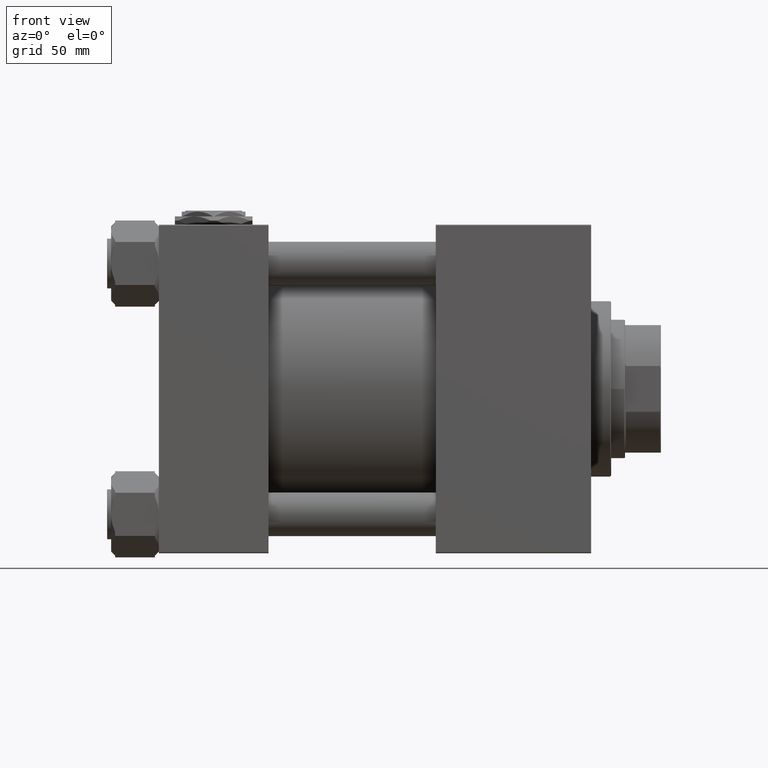
[diagram: clean part render]
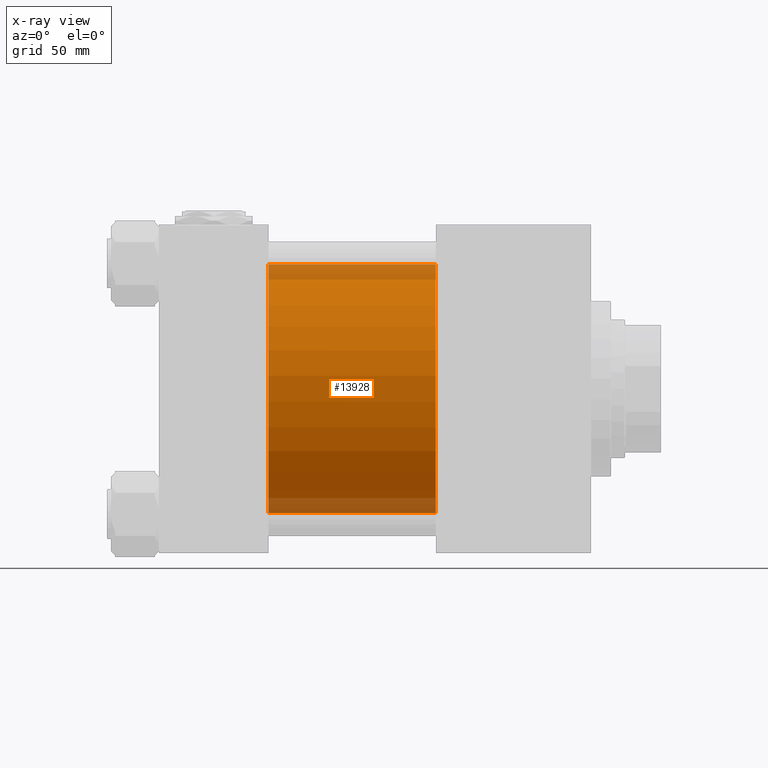
[diagram: x-ray — body ghosted, one internal face saturated and labeled with its STEP entity id]
A machine part, front view, then the same camera in x-ray: the body is ghosted and one INTERNAL B-rep face — a face not visible from any outside direction — is saturated and labeled: STEP entity #13928.
In plain terms, the highlighted cylindrical surface (partial cylindrical patch) has radius 62.5 mm, axis along (-1, -0, -0).
Its self-contained STEP definition (entity closure, byte-faithful):
#955 = CARTESIAN_POINT ( 'NONE',  ( 55.00000000000000000, -2.602085213965210642E-15, 62.50000000000000000 ) ) ;
#2004 = EDGE_CURVE ( 'NONE', #10865, #36556, #36793, .T. ) ;
#2577 = LINE ( 'NONE', #46985, #21645 ) ;
#3604 = VERTEX_POINT ( 'NONE', #13512 ) ;
#3619 = CARTESIAN_POINT ( 'NONE',  ( 139.0000000000000000, 5.051957280705745584E-15, -62.50000000000000000 ) ) ;
#4098 = DIRECTION ( 'NONE',  ( -1.000000000000000000, -0.000000000000000000, -0.000000000000000000 ) ) ;
#5006 = DIRECTION ( 'NONE',  ( 0.000000000000000000, 0.000000000000000000, -1.000000000000000000 ) ) ;
#5999 = VERTEX_POINT ( 'NONE', #955 ) ;
#7400 = ORIENTED_EDGE ( 'NONE', *, *, #31120, .F. ) ;
#8902 = CIRCLE ( 'NONE', #22511, 62.50000000000000000 ) ;
#9113 = CARTESIAN_POINT ( 'NONE',  ( 139.0000000000000000, 5.051957280705745584E-15, -62.50000000000000000 ) ) ;
#9378 = DIRECTION ( 'NONE',  ( -1.000000000000000000, -0.000000000000000000, -0.000000000000000000 ) ) ;
#10865 = VERTEX_POINT ( 'NONE', #3619 ) ;
#13512 = CARTESIAN_POINT ( 'NONE',  ( 139.0000000000000000, -2.602085213965210642E-15, 62.50000000000000000 ) ) ;
#13928 = ADVANCED_FACE ( 'NONE', ( #49281 ), #24839, .F. ) ;
#16702 = ORIENTED_EDGE ( 'NONE', *, *, #18073, .F. ) ;
#16852 = DIRECTION ( 'NONE',  ( 0.000000000000000000, 0.000000000000000000, 1.000000000000000000 ) ) ;
#18073 = EDGE_CURVE ( 'NONE', #3604, #5999, #2577, .T. ) ;
#19033 = EDGE_CURVE ( 'NONE', #3604, #10865, #8902, .T. ) ;
#19086 = DIRECTION ( 'NONE',  ( -1.000000000000000000, -0.000000000000000000, -0.000000000000000000 ) ) ;
#21645 = VECTOR ( 'NONE', #19086, 1000.000000000000000 ) ;
#22511 = AXIS2_PLACEMENT_3D ( 'NONE', #29480, #37979, #5006 ) ;
#24518 = CIRCLE ( 'NONE', #32143, 62.50000000000000000 ) ;
#24578 = CARTESIAN_POINT ( 'NONE',  ( 139.0000000000000000, -2.602085213965210642E-15, 0.000000000000000000 ) ) ;
#24839 = CYLINDRICAL_SURFACE ( 'NONE', #36752, 62.50000000000000000 ) ;
#29480 = CARTESIAN_POINT ( 'NONE',  ( 139.0000000000000000, -2.602085213965210642E-15, 0.000000000000000000 ) ) ;
#31120 = EDGE_CURVE ( 'NONE', #5999, #36556, #24518, .T. ) ;
#32143 = AXIS2_PLACEMENT_3D ( 'NONE', #38887, #49801, #50065 ) ;
#36123 = CARTESIAN_POINT ( 'NONE',  ( 55.00000000000000000, 5.051957280705745584E-15, -62.50000000000000000 ) ) ;
#36556 = VERTEX_POINT ( 'NONE', #36123 ) ;
#36752 = AXIS2_PLACEMENT_3D ( 'NONE', #24578, #4098, #16852 ) ;
#36793 = LINE ( 'NONE', #9113, #43204 ) ;
#37979 = DIRECTION ( 'NONE',  ( 1.000000000000000000, 0.000000000000000000, 0.000000000000000000 ) ) ;
#38887 = CARTESIAN_POINT ( 'NONE',  ( 55.00000000000000000, -2.602085213965210642E-15, 0.000000000000000000 ) ) ;
#43204 = VECTOR ( 'NONE', #9378, 1000.000000000000000 ) ;
#46985 = CARTESIAN_POINT ( 'NONE',  ( 139.0000000000000000, -2.602085213965210642E-15, 62.50000000000000000 ) ) ;
#48762 = ORIENTED_EDGE ( 'NONE', *, *, #19033, .T. ) ;
#49281 = FACE_OUTER_BOUND ( 'NONE', #50802, .T. ) ;
#49801 = DIRECTION ( 'NONE',  ( 1.000000000000000000, 0.000000000000000000, 0.000000000000000000 ) ) ;
#50065 = DIRECTION ( 'NONE',  ( 0.000000000000000000, 0.000000000000000000, -1.000000000000000000 ) ) ;
#50802 = EDGE_LOOP ( 'NONE', ( #48762, #52463, #7400, #16702 ) ) ;
#52463 = ORIENTED_EDGE ( 'NONE', *, *, #2004, .T. ) ;